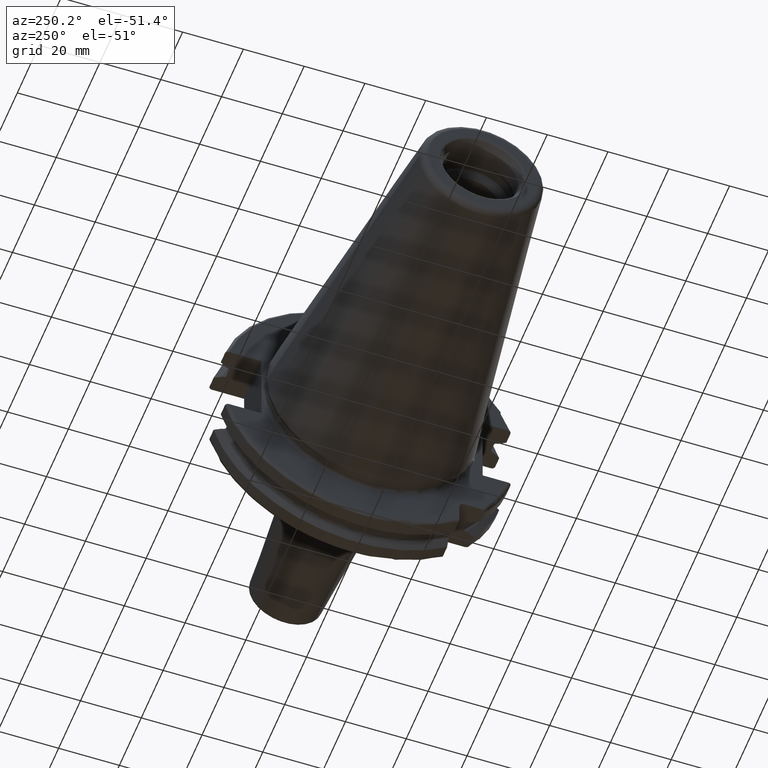
[diagram: clean part render]
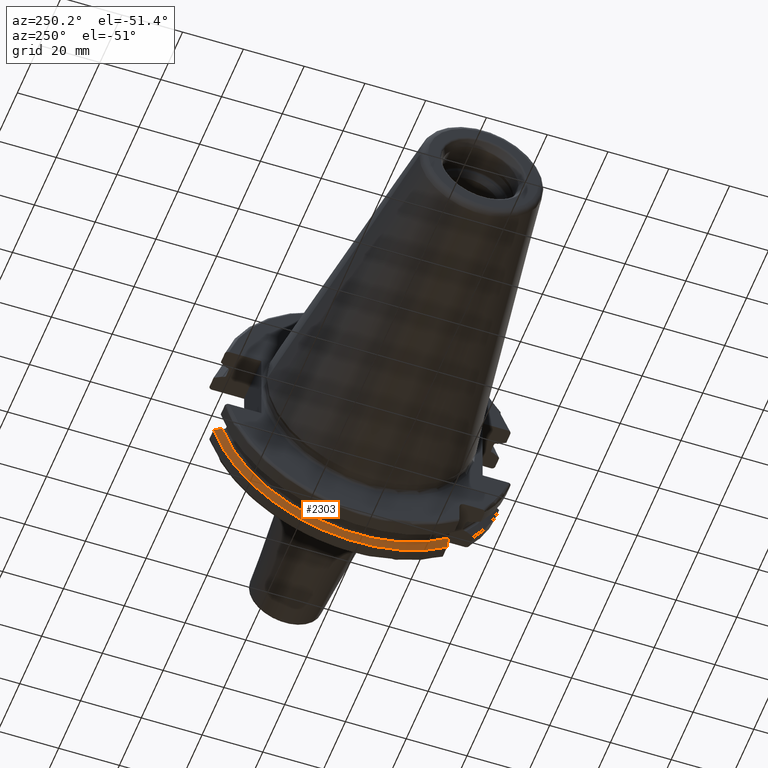
[diagram: same view with one face highlighted and labeled with its STEP entity id]
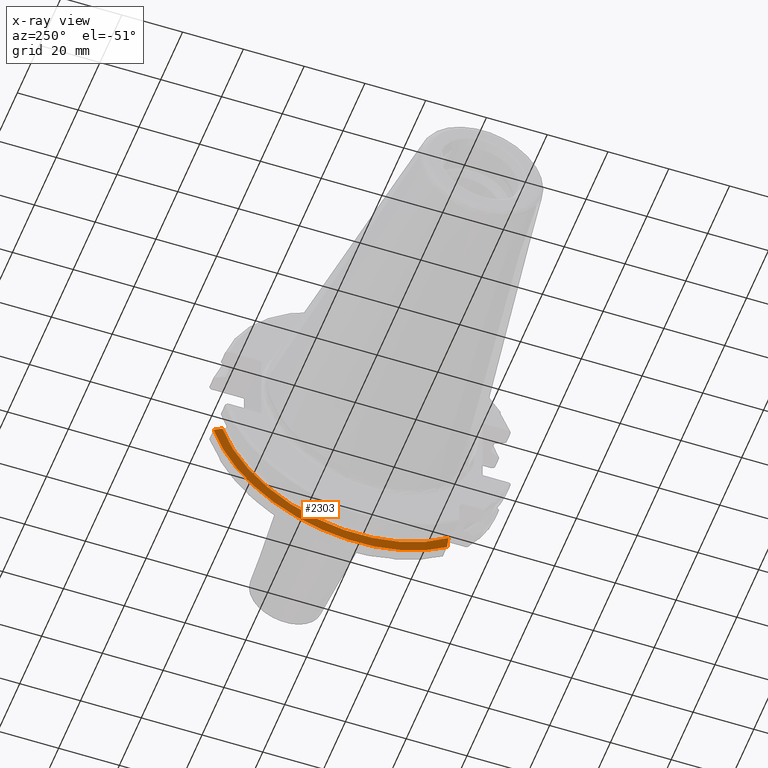
[diagram: x-ray of the same camera — body ghosted, the highlighted face saturated]
A machine part, auxiliary view. The second image highlights one B-rep face of the part: STEP entity #2303.
The next image is the same camera in x-ray: the body ghosted, the highlighted face saturated — about 0% of this face is hidden behind the body in this view.
In plain terms, the highlighted conical surface has half-angle 60 deg.
Its self-contained STEP definition (entity closure, byte-faithful):
#740=CARTESIAN_POINT('',(1.441537838583E1,0.E0,0.E0));
#741=DIRECTION('',(1.E0,0.E0,0.E0));
#742=DIRECTION('',(0.E0,-6.124647345473E-1,-7.904979120376E-1));
#743=AXIS2_PLACEMENT_3D('',#740,#741,#742);
#785=CARTESIAN_POINT('',(1.30875E1,4.460981716077E1,-1.29E1));
#786=CARTESIAN_POINT('',(1.323171622645E1,4.486984125009E1,-1.29E1));
#787=CARTESIAN_POINT('',(1.352236645045E1,4.539353719098E1,-1.29E1));
#788=CARTESIAN_POINT('',(1.396495664446E1,4.618996220278E1,-1.29E1));
#789=CARTESIAN_POINT('',(1.426449561388E1,4.672829507383E1,-1.29E1));
#790=CARTESIAN_POINT('',(1.441537838583E1,4.699929686974E1,-1.29E1));
#792=CARTESIAN_POINT('',(1.30875E1,0.E0,0.E0));
#793=DIRECTION('',(-1.E0,0.E0,0.E0));
#794=DIRECTION('',(0.E0,9.606411165078E-1,-2.777924499957E-1));
#795=AXIS2_PLACEMENT_3D('',#792,#793,#794);
#797=CARTESIAN_POINT('',(1.30875E1,-2.985E1,-3.557278857662E1));
#798=CARTESIAN_POINT('',(1.322720354061E1,-2.985E1,-3.588866659244E1));
#799=CARTESIAN_POINT('',(1.351179500938E1,-2.985E1,-3.652866450573E1));
#800=CARTESIAN_POINT('',(1.395393296765E1,-2.985E1,-3.751242476101E1));
#801=CARTESIAN_POINT('',(1.425975326859E1,-2.985E1,-3.818590359837E1));
#802=CARTESIAN_POINT('',(1.441537838583E1,-2.985E1,-3.852689198793E1));
#1304=CARTESIAN_POINT('',(1.30875E1,4.460981716077E1,-1.29E1));
#1306=VERTEX_POINT('',#1304);
#1324=VERTEX_POINT('',#790);
#1391=CARTESIAN_POINT('',(1.30875E1,-2.985E1,-3.557278857662E1));
#1392=VERTEX_POINT('',#1391);
#1424=VERTEX_POINT('',#802);
#2292=CARTESIAN_POINT('',(1.375143919291E1,0.E0,0.E0));
#2293=DIRECTION('',(1.E0,0.E0,0.E0));
#2294=DIRECTION('',(0.E0,-1.E0,0.E0));
#2295=AXIS2_PLACEMENT_3D('',#2292,#2293,#2294);
#2296=CONICAL_SURFACE('',#2295,4.758752358474E1,6.E1);
#2297=ORIENTED_EDGE('',*,*,#1823,.F.);
#2298=ORIENTED_EDGE('',*,*,#2024,.T.);
#2299=ORIENTED_EDGE('',*,*,#1677,.T.);
#2300=ORIENTED_EDGE('',*,*,#2258,.T.);
#2301=EDGE_LOOP('',(#2297,#2298,#2299,#2300));
#2302=FACE_OUTER_BOUND('',#2301,.F.);
#2303=ADVANCED_FACE('',(#2302),#2296,.T.);
#744=CIRCLE('',#743,4.87375E1);
#791=B_SPLINE_CURVE_WITH_KNOTS('',3,(#785,#786,#787,#788,#789,#790),
.UNSPECIFIED.,.F.,.F.,(4,1,1,4),(0.E0,3.333333333333E-1,6.666666666667E-1,1.E0),
.UNSPECIFIED.);
#796=CIRCLE('',#795,4.643754716948E1);
#803=B_SPLINE_CURVE_WITH_KNOTS('',3,(#797,#798,#799,#800,#801,#802),
.UNSPECIFIED.,.F.,.F.,(4,1,1,4),(0.E0,3.333333333333E-1,6.666666666667E-1,1.E0),
.UNSPECIFIED.);
#1677=EDGE_CURVE('',#1392,#1424,#803,.T.);
#1823=EDGE_CURVE('',#1306,#1324,#791,.T.);
#2024=EDGE_CURVE('',#1306,#1392,#796,.T.);
#2258=EDGE_CURVE('',#1424,#1324,#744,.T.);